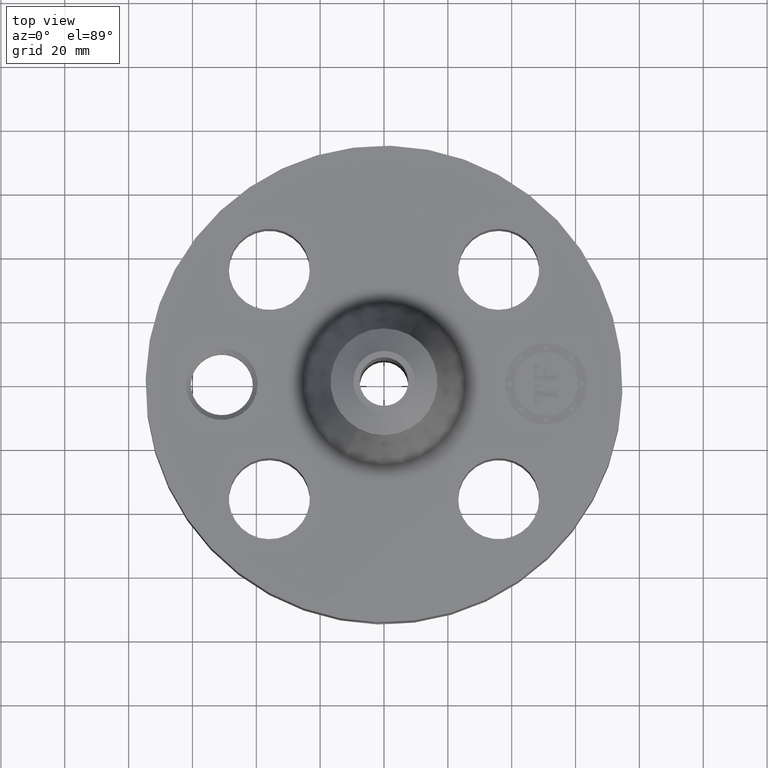
[diagram: clean part render]
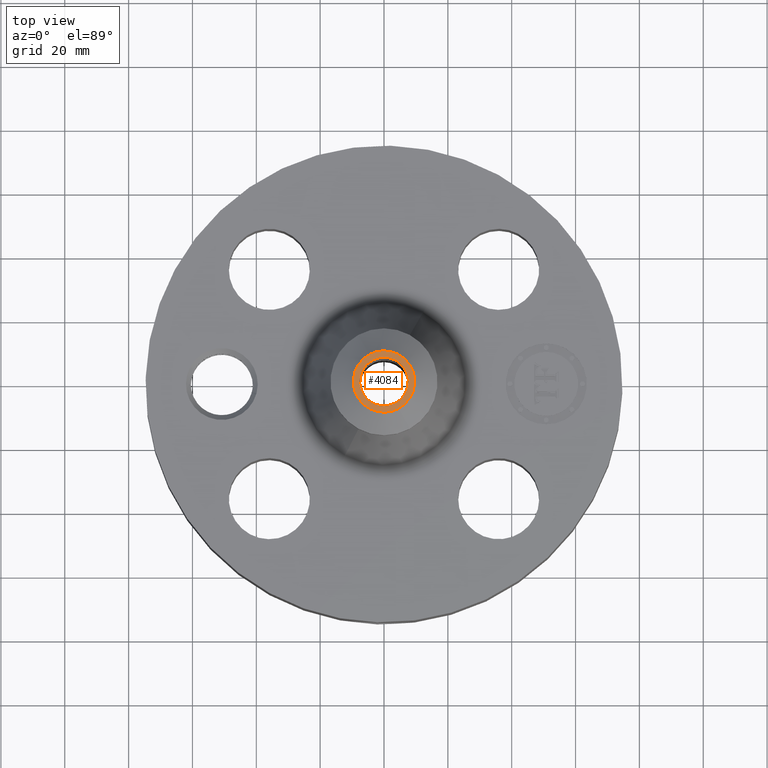
[diagram: same view with one face highlighted and labeled with its STEP entity id]
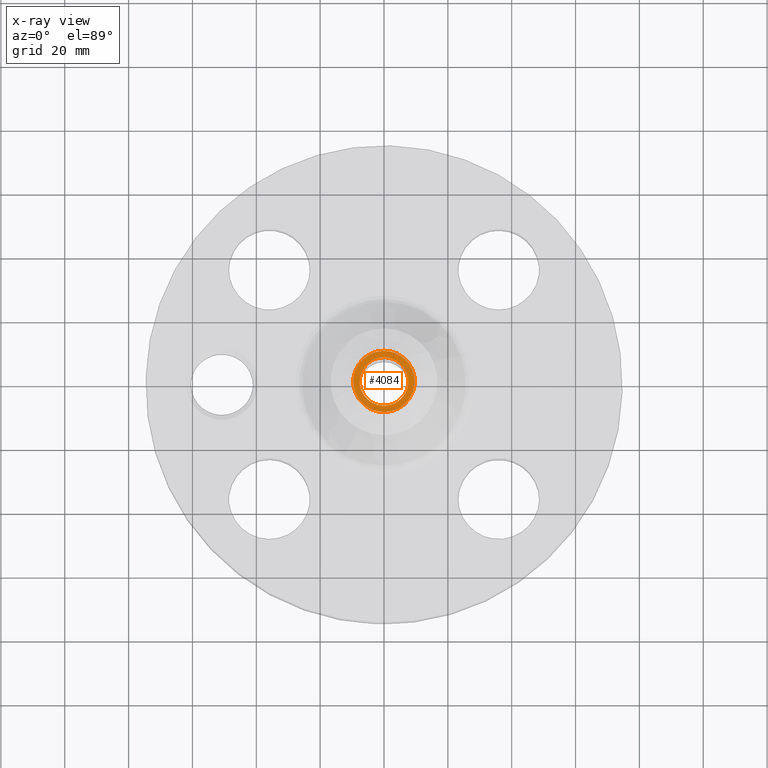
[diagram: x-ray of the same camera — body ghosted, the highlighted face saturated]
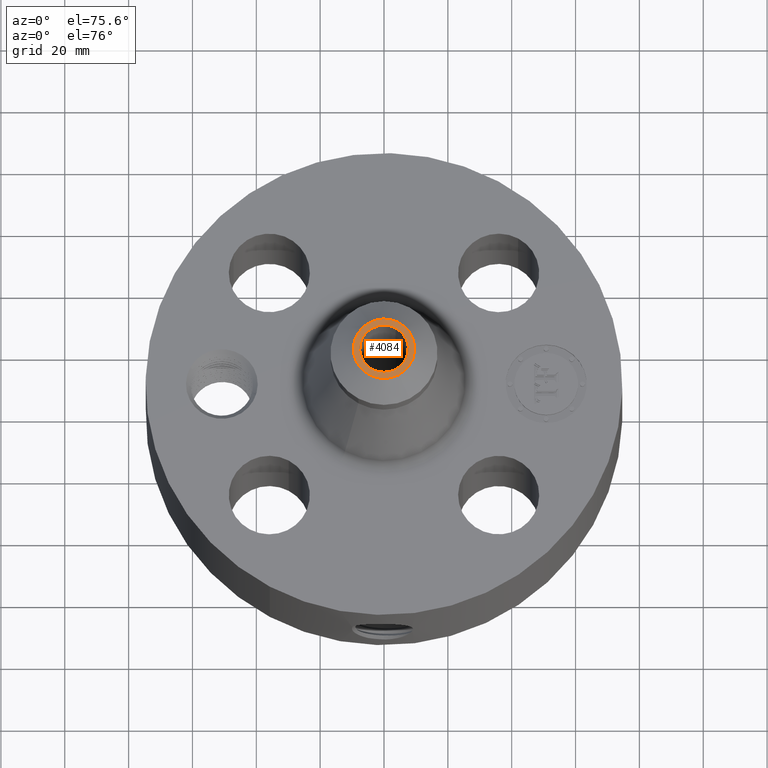
[diagram: same view with one face highlighted and labeled with its STEP entity id]
A machine part, top view. The second image highlights one B-rep face of the part: STEP entity #4084.
The next image is the same camera in x-ray: the body ghosted, the highlighted face saturated — about 0% of this face is hidden behind the body in this view.
A second angle (auxiliary view) of the same face is appended — the face is thin or edge-on in the first view.
In plain terms, the highlighted planar face has unit normal (0, 0, -1).
Its self-contained STEP definition (entity closure, byte-faithful):
#2824=AXIS2_PLACEMENT_3D('Circle Axis2P3D',#2822,#2823,$) ;
#2892=AXIS2_PLACEMENT_3D('Circle Axis2P3D',#2890,#2891,$) ;
#4060=AXIS2_PLACEMENT_3D('Plane Axis2P3D',#4057,#4058,#4059) ;
#4064=AXIS2_PLACEMENT_3D('Circle Axis2P3D',#4062,#4063,$) ;
#4073=AXIS2_PLACEMENT_3D('Circle Axis2P3D',#4071,#4072,$) ;
#2822=CARTESIAN_POINT('Axis2P3D Location',(0.,0.,3.50000000001)) ;
#2826=CARTESIAN_POINT('Vertex',(0.143587948813,0.262835977287,3.50000000001)) ;
#2828=CARTESIAN_POINT('Vertex',(-0.143587948813,-0.262835977287,3.50000000001)) ;
#2890=CARTESIAN_POINT('Axis2P3D Location',(0.,0.,3.50000000001)) ;
#4057=CARTESIAN_POINT('Axis2P3D Location',(0.,0.660000000003,3.50000000001)) ;
#4062=CARTESIAN_POINT('Axis2P3D Location',(0.,0.,3.50000000001)) ;
#4066=CARTESIAN_POINT('Vertex',(0.181337991222,-0.331936966412,3.50000000001)) ;
#4068=CARTESIAN_POINT('Vertex',(-0.181337991222,0.331936966412,3.50000000001)) ;
#4071=CARTESIAN_POINT('Axis2P3D Location',(0.,0.,3.50000000001)) ;
#2823=DIRECTION('Axis2P3D Direction',(0.,0.,-0.0393700787402)) ;
#2891=DIRECTION('Axis2P3D Direction',(0.,0.,-0.0393700787402)) ;
#4058=DIRECTION('Axis2P3D Direction',(0.,0.,-0.0393700787402)) ;
#4059=DIRECTION('Axis2P3D XDirection',(0.0393700787402,0.,0.)) ;
#4063=DIRECTION('Axis2P3D Direction',(0.,0.,-0.0393700787402)) ;
#4072=DIRECTION('Axis2P3D Direction',(0.,0.,-0.0393700787402)) ;
#4077=ORIENTED_EDGE('',*,*,#4070,.T.) ;
#4078=ORIENTED_EDGE('',*,*,#4075,.T.) ;
#4081=ORIENTED_EDGE('',*,*,#2894,.T.) ;
#4082=ORIENTED_EDGE('',*,*,#2830,.T.) ;
#4083=FACE_BOUND('',#4080,.T.) ;
#4084=ADVANCED_FACE('PartBody',(#4079,#4083),#4061,.F.) ;
#2825=CIRCLE('generated circle',#2824,0.299500000001) ;
#2893=CIRCLE('generated circle',#2892,0.299500000001) ;
#4065=CIRCLE('generated circle',#4064,0.378240157482) ;
#4074=CIRCLE('generated circle',#4073,0.378240157482) ;
#2830=EDGE_CURVE('',#2827,#2829,#2825,.T.) ;
#2894=EDGE_CURVE('',#2829,#2827,#2893,.T.) ;
#4070=EDGE_CURVE('',#4067,#4069,#4065,.F.) ;
#4075=EDGE_CURVE('',#4069,#4067,#4074,.F.) ;
#4076=EDGE_LOOP('',(#4077,#4078)) ;
#4080=EDGE_LOOP('',(#4081,#4082)) ;
#4079=FACE_OUTER_BOUND('',#4076,.T.) ;
#4061=PLANE('',#4060) ;
#2827=VERTEX_POINT('',#2826) ;
#2829=VERTEX_POINT('',#2828) ;
#4067=VERTEX_POINT('',#4066) ;
#4069=VERTEX_POINT('',#4068) ;